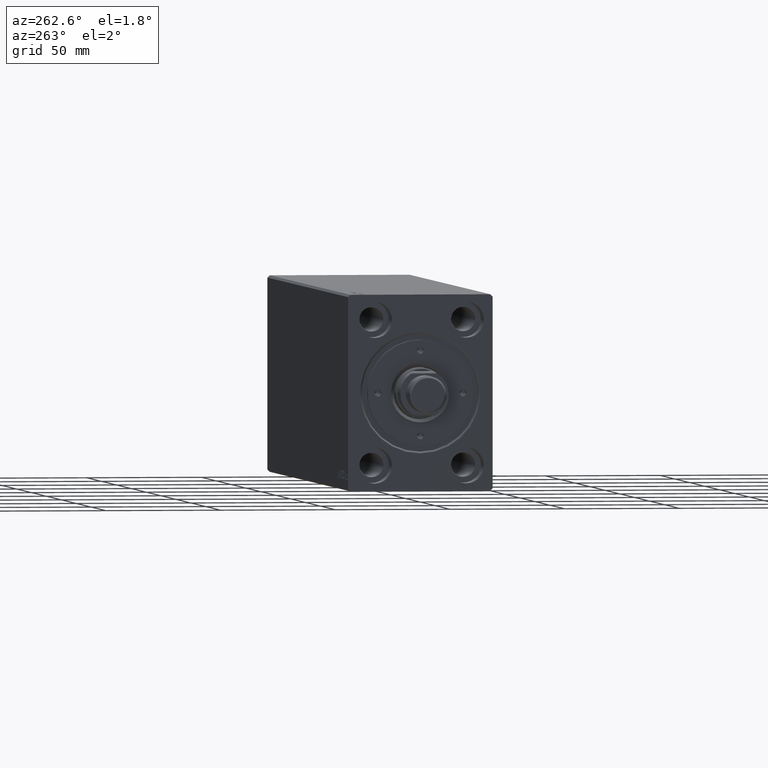
[diagram: clean part render]
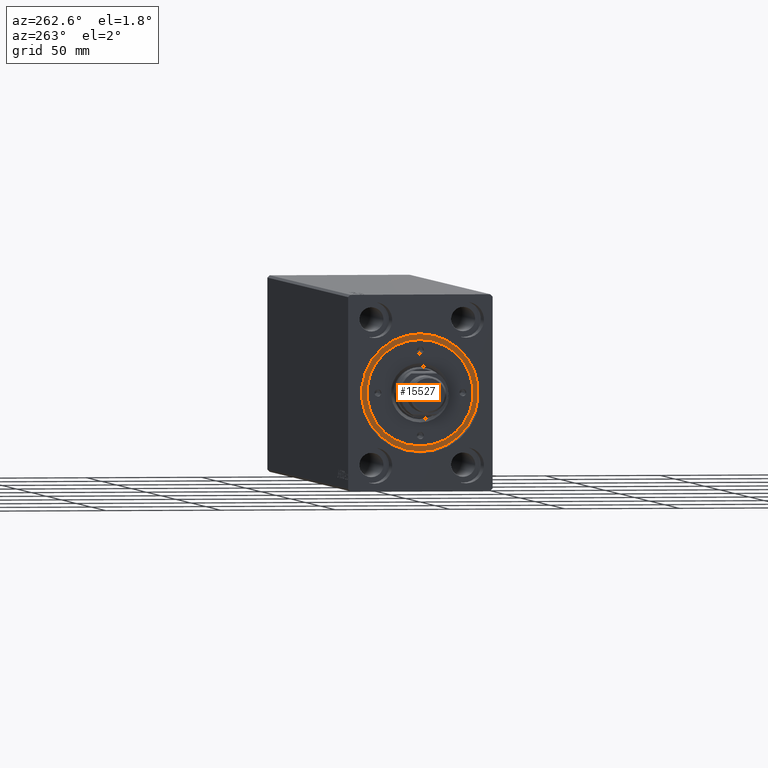
[diagram: same view with one face highlighted and labeled with its STEP entity id]
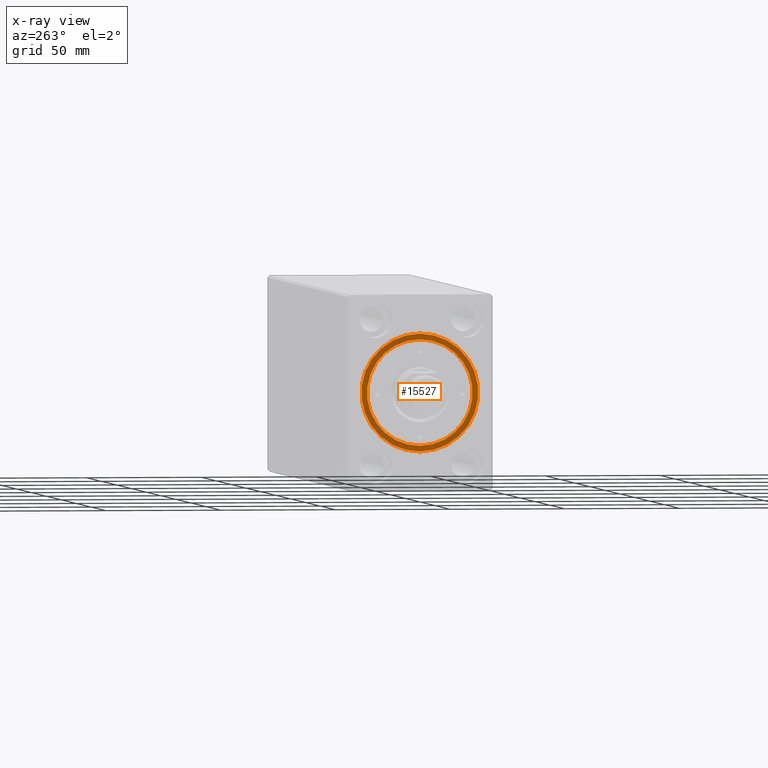
[diagram: x-ray of the same camera — body ghosted, the highlighted face saturated]
A machine part, auxiliary view. The second image highlights one B-rep face of the part: STEP entity #15527.
The next image is the same camera in x-ray: the body ghosted, the highlighted face saturated — about 0% of this face is hidden behind the body in this view.
In plain terms, the highlighted planar face has unit normal (-1, 0, 0).
Its self-contained STEP definition (entity closure, byte-faithful):
#876 = DIRECTION ( 'NONE',  ( 0.000000000000000000, 0.000000000000000000, 1.000000000000000000 ) ) ;
#1789 = EDGE_LOOP ( 'NONE', ( #36245, #6922 ) ) ;
#2787 = AXIS2_PLACEMENT_3D ( 'NONE', #23319, #3265, #23096 ) ;
#3079 = VERTEX_POINT ( 'NONE', #34202 ) ;
#3265 = DIRECTION ( 'NONE',  ( 0.000000000000000000, 0.000000000000000000, 1.000000000000000000 ) ) ;
#4076 = CARTESIAN_POINT ( 'NONE',  ( 0.000000000000000000, 0.000000000000000000, 10.00000000000000000 ) ) ;
#4526 = CIRCLE ( 'NONE', #11686, 23.00000000000000000 ) ;
#4615 = CIRCLE ( 'NONE', #18275, 25.50000000000000000 ) ;
#4743 = DIRECTION ( 'NONE',  ( 0.000000000000000000, 0.000000000000000000, 1.000000000000000000 ) ) ;
#5210 = EDGE_CURVE ( 'NONE', #34494, #3079, #6423, .T. ) ;
#6021 = EDGE_LOOP ( 'NONE', ( #11288, #21479 ) ) ;
#6103 = PLANE ( 'NONE',  #22202 ) ;
#6423 = CIRCLE ( 'NONE', #35153, 23.00000000000000000 ) ;
#6765 = FACE_BOUND ( 'NONE', #1789, .T. ) ;
#6922 = ORIENTED_EDGE ( 'NONE', *, *, #26812, .F. ) ;
#7313 = EDGE_CURVE ( 'NONE', #18900, #32825, #39529, .T. ) ;
#11257 = CARTESIAN_POINT ( 'NONE',  ( -25.50000000000000000, 0.000000000000000000, 10.00000000000000000 ) ) ;
#11262 = DIRECTION ( 'NONE',  ( 1.000000000000000000, 0.000000000000000000, 0.000000000000000000 ) ) ;
#11288 = ORIENTED_EDGE ( 'NONE', *, *, #34002, .T. ) ;
#11686 = AXIS2_PLACEMENT_3D ( 'NONE', #4076, #4743, #11262 ) ;
#15527 = ADVANCED_FACE ( 'NONE', ( #6765, #20705 ), #6103, .T. ) ;
#18275 = AXIS2_PLACEMENT_3D ( 'NONE', #35683, #18366, #40945 ) ;
#18366 = DIRECTION ( 'NONE',  ( 0.000000000000000000, 0.000000000000000000, 1.000000000000000000 ) ) ;
#18900 = VERTEX_POINT ( 'NONE', #39109 ) ;
#20705 = FACE_OUTER_BOUND ( 'NONE', #6021, .T. ) ;
#21479 = ORIENTED_EDGE ( 'NONE', *, *, #7313, .T. ) ;
#21587 = DIRECTION ( 'NONE',  ( 1.000000000000000000, 0.000000000000000000, -0.000000000000000000 ) ) ;
#22202 = AXIS2_PLACEMENT_3D ( 'NONE', #23433, #876, #21587 ) ;
#23096 = DIRECTION ( 'NONE',  ( 1.000000000000000000, 0.000000000000000000, 0.000000000000000000 ) ) ;
#23319 = CARTESIAN_POINT ( 'NONE',  ( 0.000000000000000000, 0.000000000000000000, 10.00000000000000000 ) ) ;
#23433 = CARTESIAN_POINT ( 'NONE',  ( 0.000000000000000000, 0.000000000000000000, 10.00000000000000000 ) ) ;
#26812 = EDGE_CURVE ( 'NONE', #3079, #34494, #4526, .T. ) ;
#27002 = DIRECTION ( 'NONE',  ( 1.000000000000000000, 0.000000000000000000, 0.000000000000000000 ) ) ;
#28601 = CARTESIAN_POINT ( 'NONE',  ( -23.00000000000000000, 0.000000000000000000, 10.00000000000000000 ) ) ;
#32825 = VERTEX_POINT ( 'NONE', #11257 ) ;
#33084 = CARTESIAN_POINT ( 'NONE',  ( 0.000000000000000000, 0.000000000000000000, 10.00000000000000000 ) ) ;
#34002 = EDGE_CURVE ( 'NONE', #32825, #18900, #4615, .T. ) ;
#34202 = CARTESIAN_POINT ( 'NONE',  ( 23.00000000000000000, 2.816687638038912352E-15, 10.00000000000000000 ) ) ;
#34494 = VERTEX_POINT ( 'NONE', #28601 ) ;
#35153 = AXIS2_PLACEMENT_3D ( 'NONE', #33084, #37136, #27002 ) ;
#35683 = CARTESIAN_POINT ( 'NONE',  ( 0.000000000000000000, 0.000000000000000000, 10.00000000000000000 ) ) ;
#36245 = ORIENTED_EDGE ( 'NONE', *, *, #5210, .F. ) ;
#37136 = DIRECTION ( 'NONE',  ( 0.000000000000000000, 0.000000000000000000, 1.000000000000000000 ) ) ;
#39109 = CARTESIAN_POINT ( 'NONE',  ( 25.50000000000000000, 3.122849337825750222E-15, 10.00000000000000000 ) ) ;
#39529 = CIRCLE ( 'NONE', #2787, 25.50000000000000000 ) ;
#40945 = DIRECTION ( 'NONE',  ( 1.000000000000000000, 0.000000000000000000, 0.000000000000000000 ) ) ;